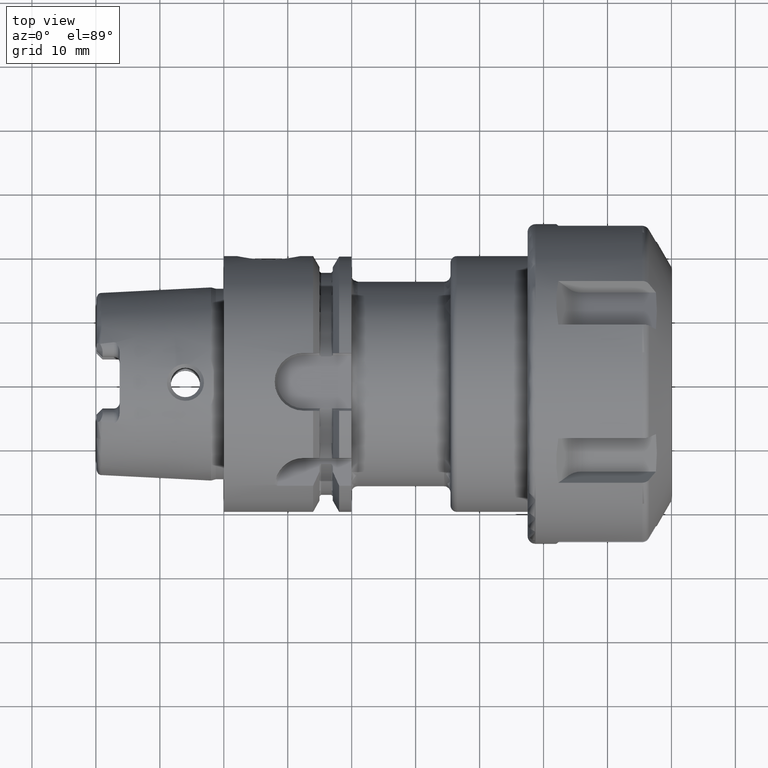
[diagram: clean part render]
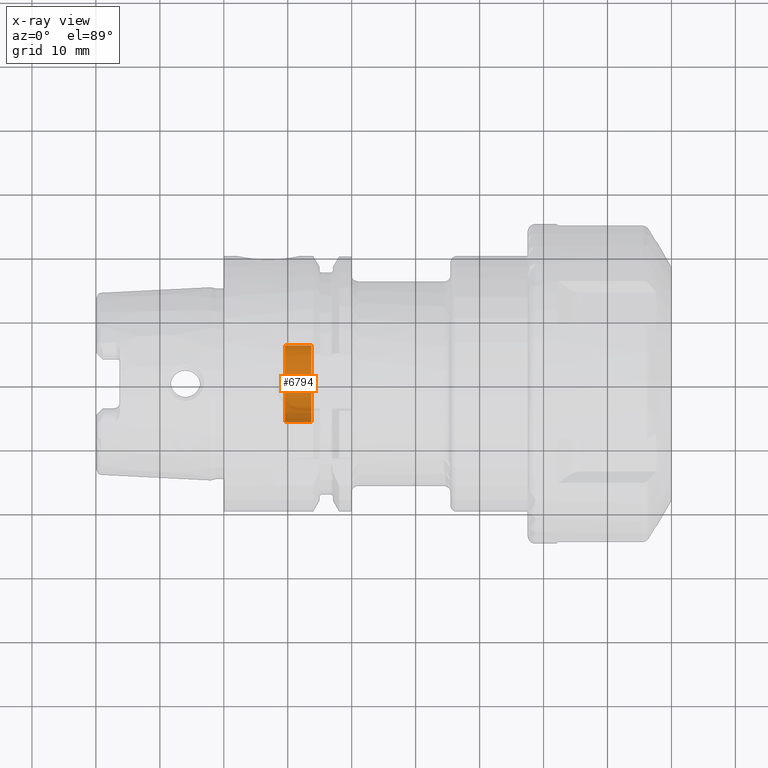
[diagram: x-ray — body ghosted, one internal face saturated and labeled with its STEP entity id]
A machine part, top view, then the same camera in x-ray: the body is ghosted and one INTERNAL B-rep face — a face not visible from any outside direction — is saturated and labeled: STEP entity #6794.
In plain terms, the highlighted cylindrical surface (partial cylindrical patch) has radius 6 mm, axis along (-1, 0, 0).
Its self-contained STEP definition (entity closure, byte-faithful):
#6743=CARTESIAN_POINT('',(1.37E1,0.E0,0.E0));
#6744=DIRECTION('',(-1.E0,0.E0,0.E0));
#6745=DIRECTION('',(0.E0,1.E0,0.E0));
#6746=AXIS2_PLACEMENT_3D('',#6743,#6744,#6745);
#6748=CARTESIAN_POINT('',(9.5625E0,0.E0,0.E0));
#6749=DIRECTION('',(1.E0,0.E0,0.E0));
#6750=DIRECTION('',(0.E0,-1.E0,0.E0));
#6751=AXIS2_PLACEMENT_3D('',#6748,#6749,#6750);
#6753=DIRECTION('',(1.E0,0.E0,0.E0));
#6754=VECTOR('',#6753,4.1375E0);
#6755=CARTESIAN_POINT('',(9.5625E0,6.E0,0.E0));
#6756=LINE('',#6755,#6754);
#6762=DIRECTION('',(1.E0,0.E0,0.E0));
#6763=VECTOR('',#6762,4.1375E0);
#6764=CARTESIAN_POINT('',(9.5625E0,-6.E0,0.E0));
#6765=LINE('',#6764,#6763);
#6771=CARTESIAN_POINT('',(9.5625E0,6.E0,0.E0));
#6772=CARTESIAN_POINT('',(1.37E1,6.E0,0.E0));
#6773=VERTEX_POINT('',#6771);
#6774=VERTEX_POINT('',#6772);
#6775=CARTESIAN_POINT('',(9.5625E0,-6.E0,0.E0));
#6776=CARTESIAN_POINT('',(1.37E1,-6.E0,0.E0));
#6777=VERTEX_POINT('',#6775);
#6778=VERTEX_POINT('',#6776);
#6779=CARTESIAN_POINT('',(1.851760861489E1,0.E0,0.E0));
#6780=DIRECTION('',(-1.E0,0.E0,0.E0));
#6781=DIRECTION('',(0.E0,1.E0,0.E0));
#6782=AXIS2_PLACEMENT_3D('',#6779,#6780,#6781);
#6783=CYLINDRICAL_SURFACE('',#6782,6.E0);
#6785=ORIENTED_EDGE('',*,*,#6784,.T.);
#6787=ORIENTED_EDGE('',*,*,#6786,.T.);
#6789=ORIENTED_EDGE('',*,*,#6788,.F.);
#6791=ORIENTED_EDGE('',*,*,#6790,.T.);
#6792=EDGE_LOOP('',(#6785,#6787,#6789,#6791));
#6793=FACE_OUTER_BOUND('',#6792,.F.);
#6794=ADVANCED_FACE('',(#6793),#6783,.F.);
#6747=CIRCLE('',#6746,6.E0);
#6752=CIRCLE('',#6751,6.E0);
#6784=EDGE_CURVE('',#6773,#6774,#6756,.T.);
#6786=EDGE_CURVE('',#6774,#6778,#6747,.T.);
#6788=EDGE_CURVE('',#6777,#6778,#6765,.T.);
#6790=EDGE_CURVE('',#6777,#6773,#6752,.T.);